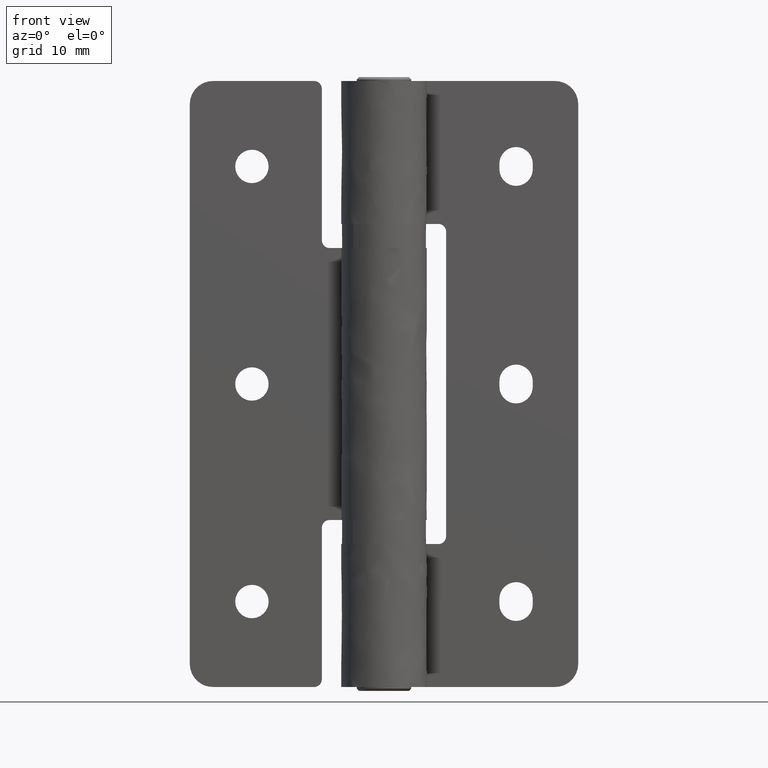
[diagram: clean part render]
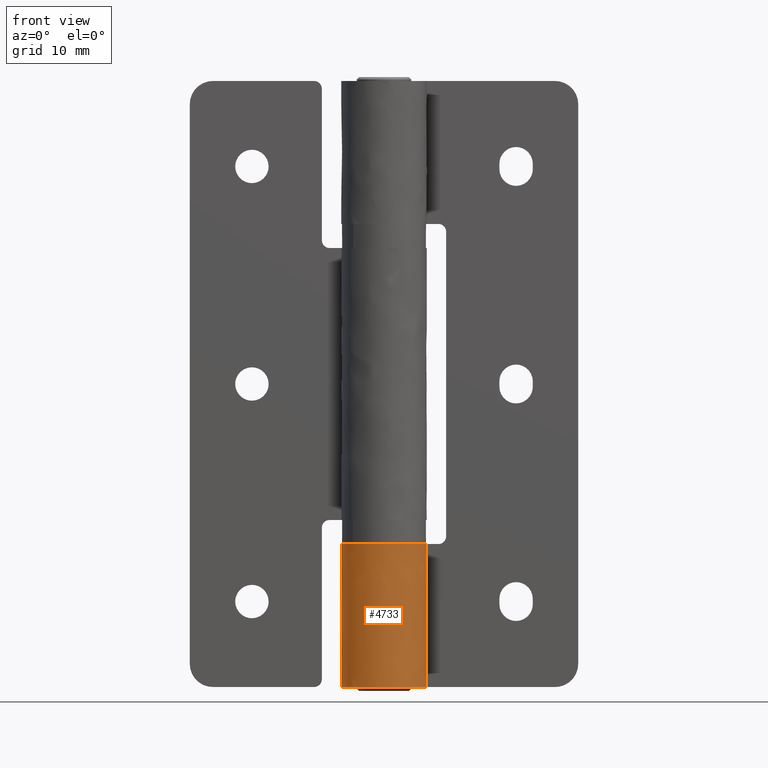
[diagram: same view with one face highlighted and labeled with its STEP entity id]
A machine part, front view. The second image highlights one B-rep face of the part: STEP entity #4733.
In plain terms, the highlighted face is a freeform B-spline surface patch.
Its self-contained STEP definition (entity closure, byte-faithful):
#3181=CARTESIAN_POINT('',(-1.010300E-015,5.500000000000000,0.0));
#3182=VERTEX_POINT('',#3181);
#3188=CARTESIAN_POINT('',(-1.010298E-015,5.500000000000229,18.399999999999999));
#3189=VERTEX_POINT('',#3188);
#3190=CARTESIAN_POINT('',(-1.010298E-015,5.500000000000229,18.399999999999999));
#3191=CARTESIAN_POINT('',(-1.010300E-015,5.500000000000000,0.0));
#3192=QUASI_UNIFORM_CURVE('',1,(#3190,#3191),.UNSPECIFIED.,.F.,.U.);
#3193=EDGE_CURVE('',#3189,#3182,#3192,.T.);
#3536=CARTESIAN_POINT('',(4.609772228646420,3.000000000000035,17.399999999999999));
#3537=VERTEX_POINT('',#3536);
#3538=CARTESIAN_POINT('',(5.078391855980300,2.111856092898610,18.399999999999999));
#3539=VERTEX_POINT('',#3538);
#3540=CARTESIAN_POINT('',(4.609772228646420,3.000000000000035,17.399999999999999));
#3541=CARTESIAN_POINT('',(4.792190710755740,2.719895476872171,17.734267908756550));
#3542=CARTESIAN_POINT('',(4.948834217426312,2.423012880456869,18.068539121144859));
#3543=CARTESIAN_POINT('',(5.078391855980300,2.111856092898610,18.399999999999999));
#3544=B_SPLINE_CURVE_WITH_KNOTS('',3,(#3540,#3541,#3542,#3543),.UNSPECIFIED.,.F.,.U.,(4,4),(3.876282E-010,1.418182002657555),.UNSPECIFIED.);
#3545=EDGE_CURVE('',#3537,#3539,#3544,.T.);
#3627=CARTESIAN_POINT('',(4.609772228646420,3.000000000000035,1.0));
#3628=VERTEX_POINT('',#3627);
#3634=CARTESIAN_POINT('',(5.078391855980370,2.111856092898445,0.0));
#3635=VERTEX_POINT('',#3634);
#3636=CARTESIAN_POINT('',(5.078391855980370,2.111856092898445,0.0));
#3637=CARTESIAN_POINT('',(4.948836634253775,2.423014900633918,0.331461253777724));
#3638=CARTESIAN_POINT('',(4.792188186317827,2.719893425639873,0.665731748988943));
#3639=CARTESIAN_POINT('',(4.609772228646420,3.000000000000035,1.0));
#3640=B_SPLINE_CURVE_WITH_KNOTS('',3,(#3636,#3637,#3638,#3639),.UNSPECIFIED.,.F.,.U.,(4,4),(3.876122E-010,1.418182002657683),.UNSPECIFIED.);
#3641=EDGE_CURVE('',#3635,#3628,#3640,.T.);
#4324=CARTESIAN_POINT('',(-3.052441568646160,-4.575215893266782,18.399999999999999));
#4325=VERTEX_POINT('',#4324);
#4326=CARTESIAN_POINT('',(-3.052441568646160,-4.575215893266782,18.399999999999999));
#4327=CARTESIAN_POINT('',(-3.356681098089563,-4.372299996417372,18.399999999999999));
#4328=CARTESIAN_POINT('',(-3.853434531099211,-3.963788461023420,18.400000000000009));
#4329=CARTESIAN_POINT('',(-4.449776534547049,-3.267427615256247,18.399999999999981));
#4330=CARTESIAN_POINT('',(-4.896789415767225,-2.552152949618453,18.400000000000020));
#4331=CARTESIAN_POINT('',(-5.257323859684929,-1.708822675974183,18.399999999999942));
#4332=CARTESIAN_POINT('',(-5.482924378709287,-0.742975928260072,18.400000000000102));
#4333=CARTESIAN_POINT('',(-5.524718427361189,0.303134500087299,18.400000000000109));
#4334=CARTESIAN_POINT('',(-5.387845966871811,1.211212357107191,18.399999999999409));
#4335=CARTESIAN_POINT('',(-5.108091897064424,2.102540660940143,18.400000000000482));
#4336=CARTESIAN_POINT('',(-4.680730184672465,2.957184405782819,18.399999999999679));
#4337=CARTESIAN_POINT('',(-4.092404090163305,3.710173376785836,18.400000000000109));
#4338=CARTESIAN_POINT('',(-3.421007154956874,4.333126146261631,18.399999999999991));
#4339=CARTESIAN_POINT('',(-2.571644200941084,4.912460792851135,18.399999999999970));
#4340=CARTESIAN_POINT('',(-1.389613674370282,5.383089438555798,18.400000000000059));
#4341=CARTESIAN_POINT('',(-0.457126074255591,5.500114431511965,18.399999999999810));
#4342=CARTESIAN_POINT('',(-1.010298E-015,5.500000000000229,18.399999999999999));
#4343=B_SPLINE_CURVE_WITH_KNOTS('',3,(#4326,#4327,#4328,#4329,#4330,#4331,#4332,#4333,#4334,#4335,#4336,#4337,#4338,#4339,#4340,#4341,#4342),.UNSPECIFIED.,.F.,.U.,(4,1,1,1,1,1,1,1,1,1,1,1,1,1,4),(0.000000192420149,1.097090733077701,1.919921429674607,2.742752418175874,3.620436751944750,4.662683472096353,5.704960886077105,6.747212047745530,7.405382899332794,8.502528703336076,9.599631797236839,10.257893896961070,11.245289583731660,12.671532280488981,14.042891724530531),.UNSPECIFIED.);
#4344=EDGE_CURVE('',#4325,#3189,#4343,.T.);
#4346=CARTESIAN_POINT('',(5.078391855980300,2.111856092898610,18.399999999999999));
#4347=CARTESIAN_POINT('',(5.289237890076593,1.605421632204154,18.399999999999949));
#4348=CARTESIAN_POINT('',(5.508193794256428,0.726292148620150,18.400000000000091));
#4349=CARTESIAN_POINT('',(5.508228060515864,-0.430857927022566,18.399999999999942));
#4350=CARTESIAN_POINT('',(5.343250915739240,-1.425404048002283,18.399999999999999));
#4351=CARTESIAN_POINT('',(5.020718751483988,-2.325937749290949,18.400000000000080));
#4352=CARTESIAN_POINT('',(4.544929960745982,-3.131436334506457,18.400000000000009));
#4353=CARTESIAN_POINT('',(4.039197416966188,-3.759293090803659,18.399999999999881));
#4354=CARTESIAN_POINT('',(3.357012453473904,-4.398916515805034,18.400000000000048));
#4355=CARTESIAN_POINT('',(2.485721936587941,-4.949535453406833,18.399999999999942));
#4356=CARTESIAN_POINT('',(1.574747268794669,-5.291475041569862,18.399999999999981));
#4357=CARTESIAN_POINT('',(0.714714739594358,-5.474366111224714,18.400000000000048));
#4358=CARTESIAN_POINT('',(-0.018305129635992,-5.518358384913678,18.400000000000212));
#4359=CARTESIAN_POINT('',(-0.857794275806440,-5.451306387088823,18.399999999999579));
#4360=CARTESIAN_POINT('',(-1.861266449181179,-5.227668055782655,18.400000000001398));
#4361=CARTESIAN_POINT('',(-2.626644334667444,-4.859544568146930,18.399999999998531));
#4362=CARTESIAN_POINT('',(-3.052441568646160,-4.575215893266782,18.399999999999999));
#4363=B_SPLINE_CURVE_WITH_KNOTS('',3,(#4346,#4347,#4348,#4349,#4350,#4351,#4352,#4353,#4354,#4355,#4356,#4357,#4358,#4359,#4360,#4361,#4362),.UNSPECIFIED.,.F.,.U.,(4,1,1,1,1,1,1,1,1,1,1,1,1,1,4),(0.000000192440066,1.645645668627795,2.687885860199822,3.455869189447972,4.662683967119902,5.540387453810968,6.253492345544826,7.076254879776696,8.337950382143866,9.325359298223424,9.983616757238368,10.971014502836720,11.519565757777981,12.506953399600830,14.042893215363250),.UNSPECIFIED.);
#4364=EDGE_CURVE('',#3539,#4325,#4363,.T.);
#4553=CARTESIAN_POINT('',(-3.052440328501031,-4.575216720652751,0.0));
#4554=VERTEX_POINT('',#4553);
#4555=CARTESIAN_POINT('',(-3.052440328501031,-4.575216720652751,0.0));
#4556=CARTESIAN_POINT('',(-2.748258579825938,-4.778217423633270,0.0));
#4557=CARTESIAN_POINT('',(-2.115424790182005,-5.114545428496331,0.0));
#4558=CARTESIAN_POINT('',(-1.078318346416334,-5.428744174509954,0.0));
#4559=CARTESIAN_POINT('',(0.018795812177883,-5.538448424881491,0.0));
#4560=CARTESIAN_POINT('',(1.207318813174402,-5.413444119267489,0.0));
#4561=CARTESIAN_POINT('',(2.270384877064632,-5.050244065723345,0.0));
#4562=CARTESIAN_POINT('',(3.109782757486233,-4.559767220731994,0.0));
#4563=CARTESIAN_POINT('',(3.768702619482915,-4.034186914011802,0.0));
#4564=CARTESIAN_POINT('',(4.392739862603161,-3.361556007702520,0.0));
#4565=CARTESIAN_POINT('',(4.922658499706588,-2.522579974612150,0.0));
#4566=CARTESIAN_POINT('',(5.336741476772000,-1.482554084591395,0.0));
#4567=CARTESIAN_POINT('',(5.522069977790260,-0.430638887148542,0.0));
#4568=CARTESIAN_POINT('',(5.483975674558743,0.835018440777714,0.0));
#4569=CARTESIAN_POINT('',(5.275179895685865,1.639180617883323,0.0));
#4570=CARTESIAN_POINT('',(5.078391855980370,2.111856092898445,0.0));
#4571=B_SPLINE_CURVE_WITH_KNOTS('',3,(#4555,#4556,#4557,#4558,#4559,#4560,#4561,#4562,#4563,#4564,#4565,#4566,#4567,#4568,#4569,#4570),.UNSPECIFIED.,.F.,.U.,(4,1,1,1,1,1,1,1,1,1,1,1,1,4),(0.000000192441275,1.097090733096813,2.139323987763142,3.236445098545621,4.388408521542818,5.704960886088511,6.582641296480555,7.295685573600425,8.228244792905826,9.325358308209488,10.257893896965580,11.574433630685199,12.506952071812300,14.042891724530090),.UNSPECIFIED.);
#4572=EDGE_CURVE('',#4554,#3635,#4571,.T.);
#4574=CARTESIAN_POINT('',(-1.010300E-015,5.500000000000000,0.0));
#4575=CARTESIAN_POINT('',(-0.274268892750525,5.500006103066296,0.0));
#4576=CARTESIAN_POINT('',(-0.914245433747383,5.452069077766047,0.0));
#4577=CARTESIAN_POINT('',(-1.840242328002096,5.216278110609217,0.0));
#4578=CARTESIAN_POINT('',(-2.839317662729229,4.753455937010246,0.0));
#4579=CARTESIAN_POINT('',(-3.699807344077835,4.121677242978392,0.0));
#4580=CARTESIAN_POINT('',(-4.338540428678278,3.412150189624279,0.0));
#4581=CARTESIAN_POINT('',(-4.816247479421872,2.696194977617372,0.0));
#4582=CARTESIAN_POINT('',(-5.147294694401938,1.999845635538219,0.0));
#4583=CARTESIAN_POINT('',(-5.413796510992836,1.104165503669352,0.0));
#4584=CARTESIAN_POINT('',(-5.534907050952764,0.137795649400682,0.0));
#4585=CARTESIAN_POINT('',(-5.457918870828112,-0.888396532565721,0.0));
#4586=CARTESIAN_POINT('',(-5.227085699222508,-1.776037804648434,0.0));
#4587=CARTESIAN_POINT('',(-4.845288167798400,-2.669349966416338,0.0));
#4588=CARTESIAN_POINT('',(-4.181204188929113,-3.664453980736260,0.0));
#4589=CARTESIAN_POINT('',(-3.478450564094130,-4.291225477913935,0.0));
#4590=CARTESIAN_POINT('',(-3.052440328501031,-4.575216720652751,0.0));
#4591=B_SPLINE_CURVE_WITH_KNOTS('',3,(#4574,#4575,#4576,#4577,#4578,#4579,#4580,#4581,#4582,#4583,#4584,#4585,#4586,#4587,#4588,#4589,#4590),.UNSPECIFIED.,.F.,.U.,(4,1,1,1,1,1,1,1,1,1,1,1,1,1,4),(0.000000192435163,0.822813200300230,1.919921633500234,2.852457815751011,4.114132954768932,5.101537018918872,5.704961491752231,6.692328222921687,7.405383685506799,8.502529606008233,9.599632816369530,10.477315290620240,11.245290777569590,12.506953399600560,14.042893215363151),.UNSPECIFIED.);
#4592=EDGE_CURVE('',#3182,#4554,#4591,.T.);
#4697=CARTESIAN_POINT('',(0.047995945241051,5.499790576852941,18.859999999999999));
#4698=CARTESIAN_POINT('',(0.047995945241051,5.499790576852941,-0.471499999999999));
#4699=CARTESIAN_POINT('',(-6.784220641230569,5.559414427720900,18.859999999999996));
#4700=CARTESIAN_POINT('',(-6.784220641230569,5.559414427720900,-0.471499999999999));
#4701=CARTESIAN_POINT('',(-5.383115386728275,-1.127860245406883,18.859999999999999));
#4702=CARTESIAN_POINT('',(-5.383115386728275,-1.127860245406883,-0.471499999999999));
#4703=CARTESIAN_POINT('',(-3.982010132225981,-7.815134918534668,18.859999999999996));
#4704=CARTESIAN_POINT('',(-3.982010132225981,-7.815134918534668,-0.471499999999999));
#4705=CARTESIAN_POINT('',(2.251657729893508,-5.017971449441577,18.859999999999999));
#4706=CARTESIAN_POINT('',(2.251657729893508,-5.017971449441577,-0.471499999999999));
#4707=CARTESIAN_POINT('',(8.485325592012998,-2.220807980348486,18.859999999999996));
#4708=CARTESIAN_POINT('',(8.485325592012998,-2.220807980348486,-0.471499999999999));
#4709=CARTESIAN_POINT('',(4.421212733394696,3.271525327132373,18.859999999999999));
#4710=CARTESIAN_POINT('',(4.421212733394696,3.271525327132373,-0.471499999999999));
#4718=(BOUNDED_SURFACE()B_SPLINE_SURFACE(1,2,((#4697,#4699,#4701,#4703,#4705,#4707,#4709),(#4698,#4700,#4702,#4704,#4706,#4708,#4710)),.UNSPECIFIED.,.F.,.F.,.U.)B_SPLINE_SURFACE_WITH_KNOTS((2,2),(3,2,2,3),(0.0,19.331499999999998),(0.0,10.532766375446769,21.065532750893539,31.598299126340311),.UNSPECIFIED.)GEOMETRIC_REPRESENTATION_ITEM()RATIONAL_B_SPLINE_SURFACE(((1.0,0.627057105746662,1.0,0.627057105746662,1.0,0.627057105746662,1.0),(1.0,0.627057105746662,1.0,0.627057105746662,1.0,0.627057105746662,1.0)))REPRESENTATION_ITEM('')SURFACE());
#4719=ORIENTED_EDGE('',*,*,#4592,.T.);
#4720=ORIENTED_EDGE('',*,*,#4572,.T.);
#4721=ORIENTED_EDGE('',*,*,#3641,.T.);
#4722=CARTESIAN_POINT('',(4.609772228646420,3.000000000000035,17.399999999999999));
#4723=CARTESIAN_POINT('',(4.609772228646420,3.000000000000035,1.0));
#4724=QUASI_UNIFORM_CURVE('',1,(#4722,#4723),.UNSPECIFIED.,.F.,.U.);
#4725=EDGE_CURVE('',#3537,#3628,#4724,.T.);
#4726=ORIENTED_EDGE('',*,*,#4725,.F.);
#4727=ORIENTED_EDGE('',*,*,#3545,.T.);
#4728=ORIENTED_EDGE('',*,*,#4364,.T.);
#4729=ORIENTED_EDGE('',*,*,#4344,.T.);
#4730=ORIENTED_EDGE('',*,*,#3193,.T.);
#4731=EDGE_LOOP('',(#4719,#4720,#4721,#4726,#4727,#4728,#4729,#4730));
#4732=FACE_OUTER_BOUND('',#4731,.T.);
#4733=ADVANCED_FACE('',(#4732),#4718,.T.);